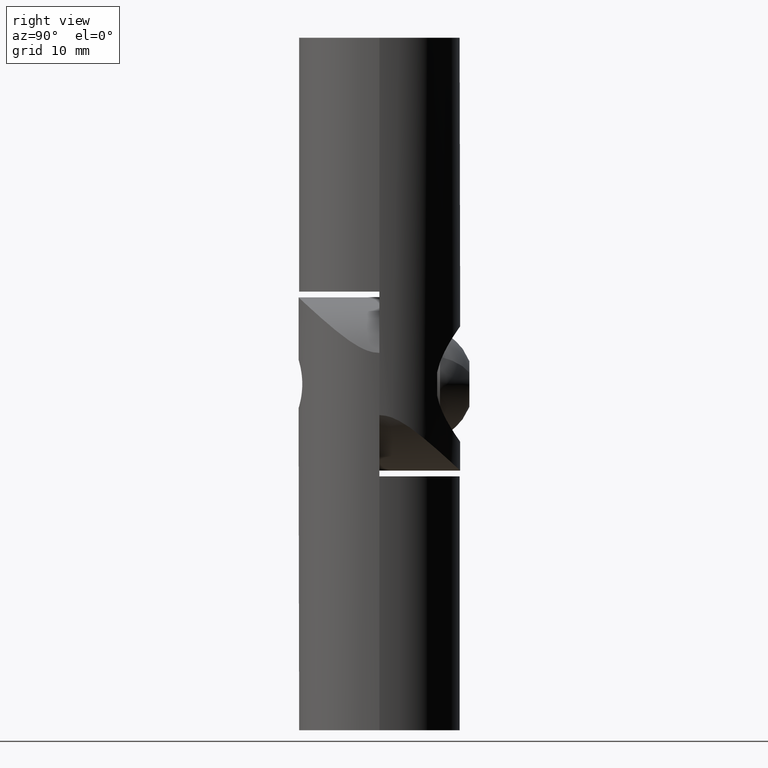
[diagram: clean part render]
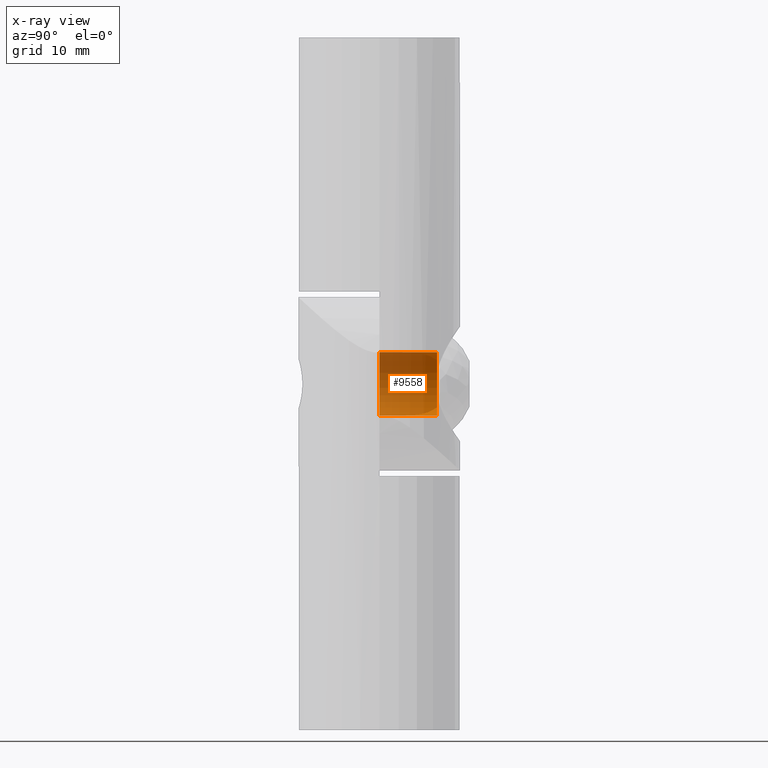
[diagram: x-ray — body ghosted, one internal face saturated and labeled with its STEP entity id]
A machine part, right view, then the same camera in x-ray: the body is ghosted and one INTERNAL B-rep face — a face not visible from any outside direction — is saturated and labeled: STEP entity #9558.
In plain terms, the highlighted cylindrical surface (edge-blend (fillet) strip) has radius 2.75 mm, axis along (-0, -1, -0).
Its self-contained STEP definition (entity closure, byte-faithful):
#907 = DIRECTION ( 'NONE',  ( -0.000000000000000000, -1.000000000000000000, -0.000000000000000000 ) ) ;
#1031 = VERTEX_POINT ( 'NONE', #11918 ) ;
#1192 = CARTESIAN_POINT ( 'NONE',  ( 0.000000000000000000, -2.449293598294703456E-16, -10.75000000000000000 ) ) ;
#1481 = DIRECTION ( 'NONE',  ( -0.000000000000000000, -1.000000000000000000, -0.000000000000000000 ) ) ;
#1489 = VERTEX_POINT ( 'NONE', #8285 ) ;
#1984 = DIRECTION ( 'NONE',  ( -0.000000000000000000, -1.000000000000000000, -0.000000000000000000 ) ) ;
#2110 = LINE ( 'NONE', #8843, #13072 ) ;
#2244 = AXIS2_PLACEMENT_3D ( 'NONE', #9806, #907, #6484 ) ;
#2508 = VERTEX_POINT ( 'NONE', #13058 ) ;
#2917 = CARTESIAN_POINT ( 'NONE',  ( 0.000000000000000000, 0.000000000000000000, -8.000000000000000000 ) ) ;
#3554 = CYLINDRICAL_SURFACE ( 'NONE', #8270, 2.749999999999999112 ) ;
#4079 = DIRECTION ( 'NONE',  ( -0.000000000000000000, -1.000000000000000000, -0.000000000000000000 ) ) ;
#4698 = CARTESIAN_POINT ( 'NONE',  ( 3.367778697655220026E-16, 0.000000000000000000, -5.250000000000000888 ) ) ;
#5341 = EDGE_CURVE ( 'NONE', #1031, #10740, #8917, .T. ) ;
#5894 = ORIENTED_EDGE ( 'NONE', *, *, #12838, .T. ) ;
#6431 = ORIENTED_EDGE ( 'NONE', *, *, #5341, .T. ) ;
#6484 = DIRECTION ( 'NONE',  ( 0.000000000000000000, 0.000000000000000000, -1.000000000000000000 ) ) ;
#7428 = DIRECTION ( 'NONE',  ( 0.000000000000000000, 0.000000000000000000, -1.000000000000000000 ) ) ;
#7439 = DIRECTION ( 'NONE',  ( 0.000000000000000000, 0.000000000000000000, -1.000000000000000000 ) ) ;
#8270 = AXIS2_PLACEMENT_3D ( 'NONE', #2917, #4079, #7439 ) ;
#8285 = CARTESIAN_POINT ( 'NONE',  ( 3.367778697655220026E-16, 5.000000000000000888, -5.250000000000000888 ) ) ;
#8421 = AXIS2_PLACEMENT_3D ( 'NONE', #9862, #1984, #7428 ) ;
#8624 = VECTOR ( 'NONE', #1481, 1000.000000000000000 ) ;
#8843 = CARTESIAN_POINT ( 'NONE',  ( 0.000000000000000000, 0.000000000000000000, -10.75000000000000000 ) ) ;
#8917 = CIRCLE ( 'NONE', #8421, 2.749999999999999112 ) ;
#9331 = ORIENTED_EDGE ( 'NONE', *, *, #12681, .F. ) ;
#9558 = ADVANCED_FACE ( 'NONE', ( #14111 ), #3554, .F. ) ;
#9806 = CARTESIAN_POINT ( 'NONE',  ( 0.000000000000000000, 5.000000000000000888, -8.000000000000000000 ) ) ;
#9862 = CARTESIAN_POINT ( 'NONE',  ( 0.000000000000000000, -2.449293598294703456E-16, -8.000000000000000000 ) ) ;
#10740 = VERTEX_POINT ( 'NONE', #1192 ) ;
#11519 = LINE ( 'NONE', #4698, #8624 ) ;
#11858 = ORIENTED_EDGE ( 'NONE', *, *, #12589, .F. ) ;
#11918 = CARTESIAN_POINT ( 'NONE',  ( 3.367778697655220026E-16, -2.449293598294703456E-16, -5.250000000000000888 ) ) ;
#12589 = EDGE_CURVE ( 'NONE', #1489, #2508, #13429, .T. ) ;
#12608 = EDGE_LOOP ( 'NONE', ( #11858, #5894, #6431, #9331 ) ) ;
#12681 = EDGE_CURVE ( 'NONE', #2508, #10740, #2110, .T. ) ;
#12838 = EDGE_CURVE ( 'NONE', #1489, #1031, #11519, .T. ) ;
#13058 = CARTESIAN_POINT ( 'NONE',  ( 0.000000000000000000, 5.000000000000000888, -10.75000000000000000 ) ) ;
#13072 = VECTOR ( 'NONE', #13136, 1000.000000000000000 ) ;
#13136 = DIRECTION ( 'NONE',  ( -0.000000000000000000, -1.000000000000000000, -0.000000000000000000 ) ) ;
#13429 = CIRCLE ( 'NONE', #2244, 2.749999999999999112 ) ;
#14111 = FACE_OUTER_BOUND ( 'NONE', #12608, .T. ) ;